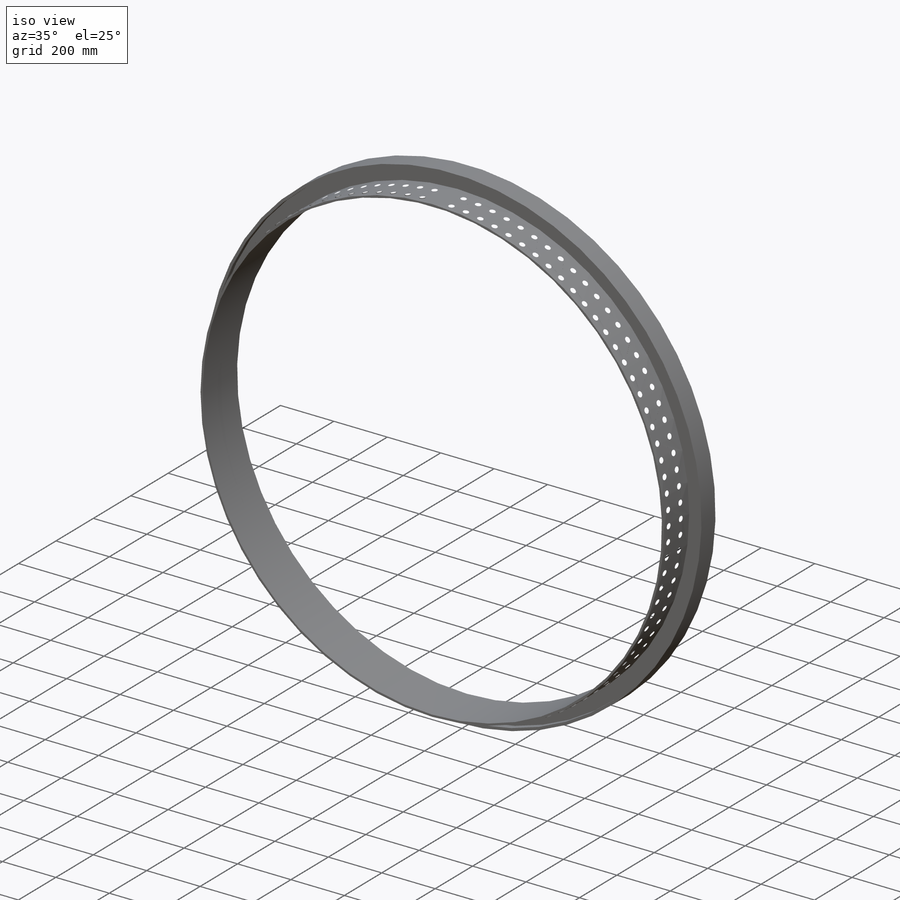
[diagram: iso view]
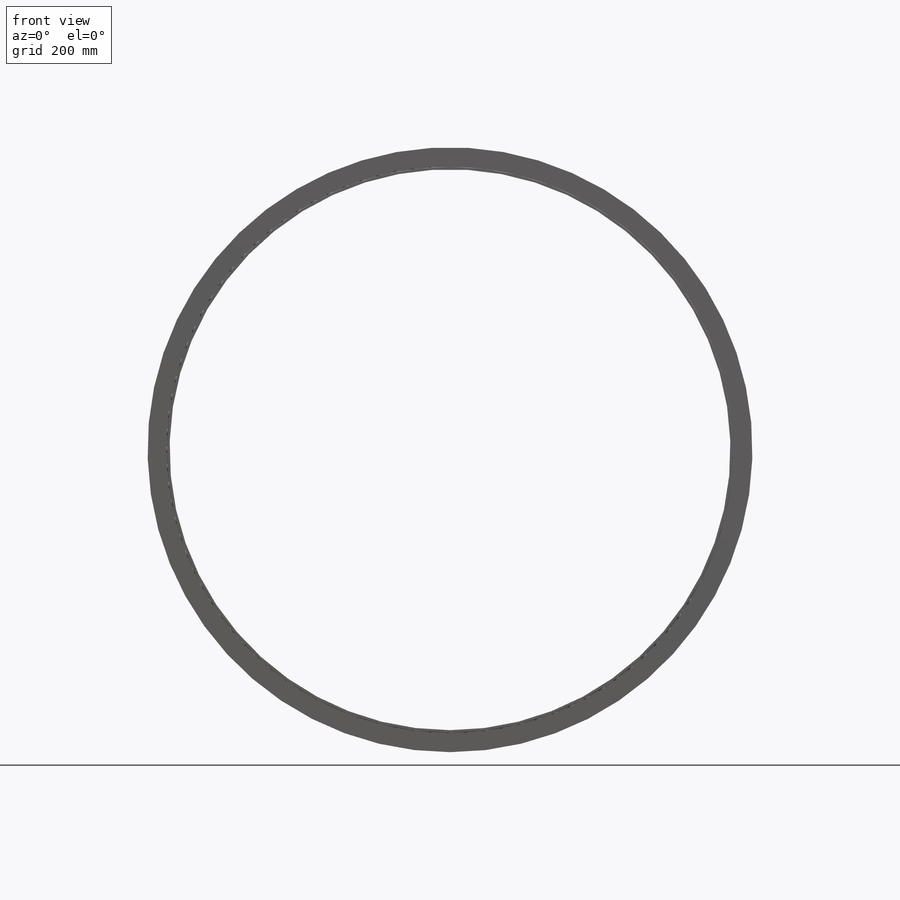
[diagram: front view]
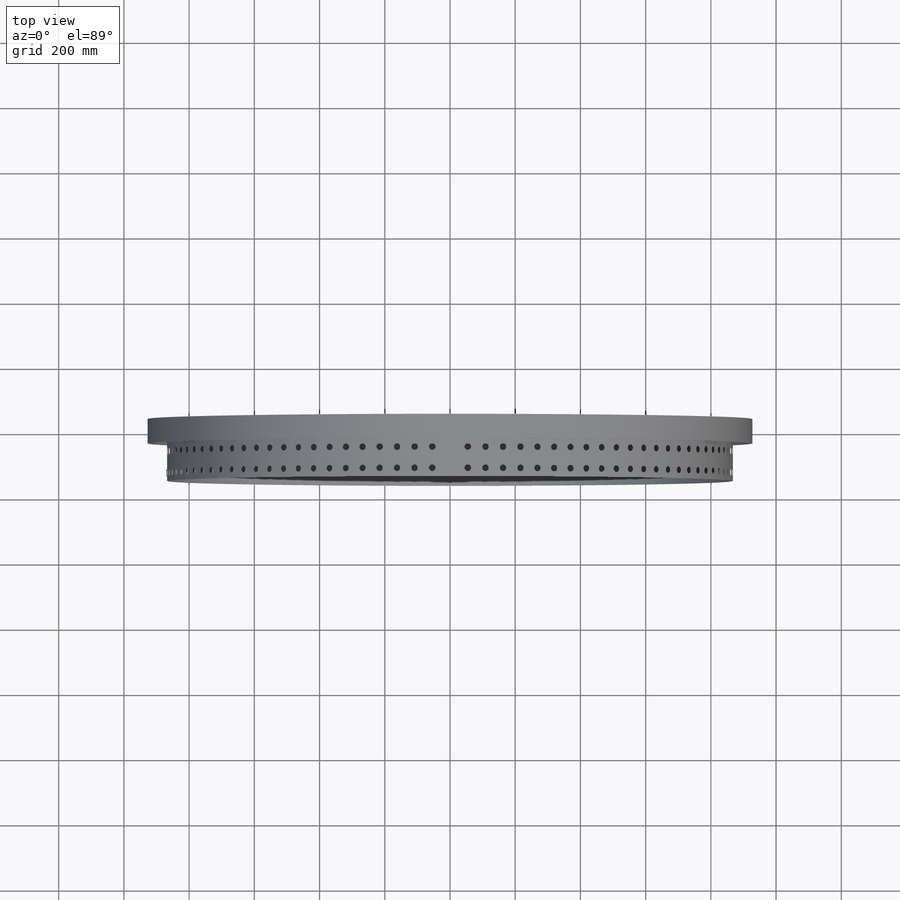
[diagram: top view]
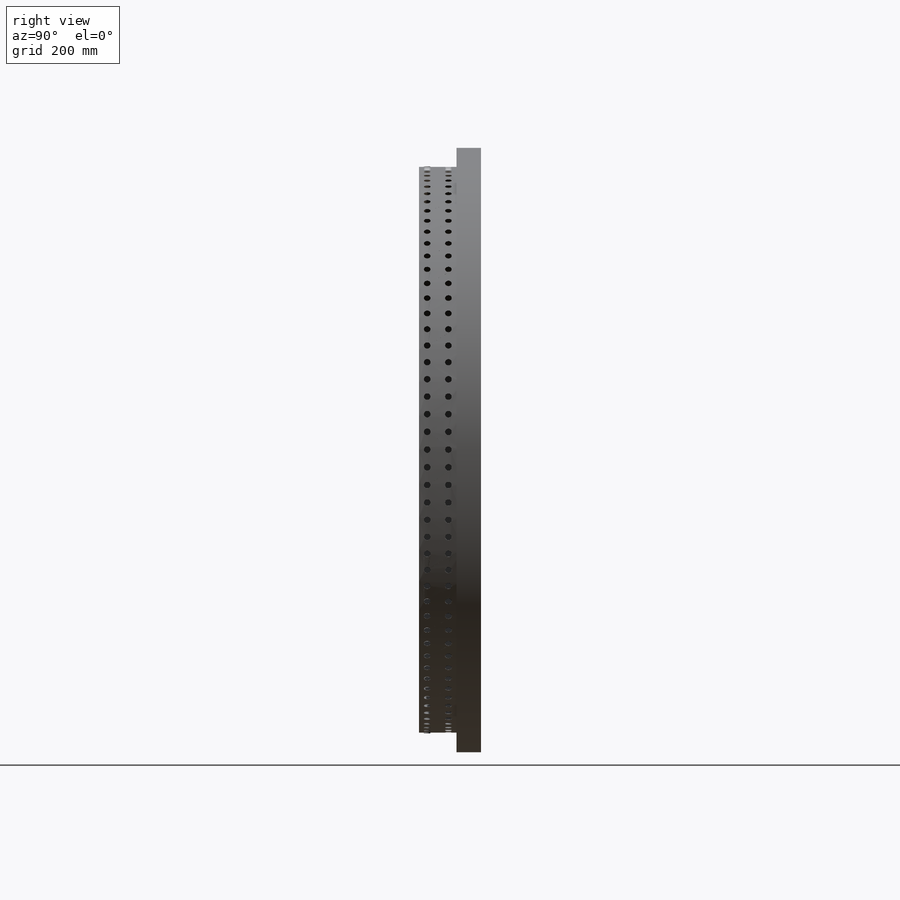
[diagram: right view]
SOLIDWORKS PART (.sldprt)
format: sldprt  version: not decoded by parser v0  size: 2,316,288 bytes
history: native  units: mm
features: sketch x6, pattern_circular x3, extrude x2, plane x2, revolve x2, dome x2, material x1, fillet x1, cut_extrude x1 (+11 scaffold rows collapsed)
feature tree (31):
  scaffold x11  (default folders/planes/origin — collapsed)
  material  "Chrome Stainless Steel"
  sketch  "Sketch1"  dims[D1=~33.060947mm]
  extrude  "Boss-Extrude1"  Depth=300mm
  fillet  "Fillet1"  Radius=37.5mm
  sketch  "Sketch2"
  plane  "Plane1"  Offset=900mm
  sketch  "Sketch5"  dims[c1.D1=25.0mm c1.D2=25.0mm c1.D4=60.0mm c1.D3=5.0mm c2.D4=25.0mm]
  revolve  "Revolve2"  Angle=360deg
  sketch  "Sketch6"  dims[c1.D1=12.0mm c1.D2=75.0mm c1.D3=35.0mm c1.D4=28.0mm c2.D3=20.0mm c2.D4=10.0mm c2.D5=7.5mm c2.D6=50.0mm c2.D7=60.0mm c2.D8=125.0mm]
  revolve  "Revolve3"  Angle=360deg
  sketch  "Sketch7"  dims[D2=20.0mm D1=885.0mm]
  cut_extrude  "Cut-Extrude2"  [1 undecoded]
  pattern_circular  "CirPattern2"  Count=75 Angle=360deg
  plane  "Plane2"  Offset=870mm
  sketch  "Sketch9"  dims[D3=20.0mm D4=20.0mm D1=25.0mm D2=25.0mm D5=65.0mm]
  extrude  "Boss-Extrude2"  [1 undecoded]
  pattern_circular  "CirPattern4"  Count=100 Angle=3.6deg
  dome  "Dome2"
  dome  "Dome3"
  pattern_circular  "CirPattern5"  Count=100 Angle=3.6deg
decode coverage: 12 of 17 modeling features carry decoded parameters
note: ~ marks probable driven/reference dimensions
note: 2 parameter values undecoded
note: suppression state not decoded; provenance and decode notes live in map.json
